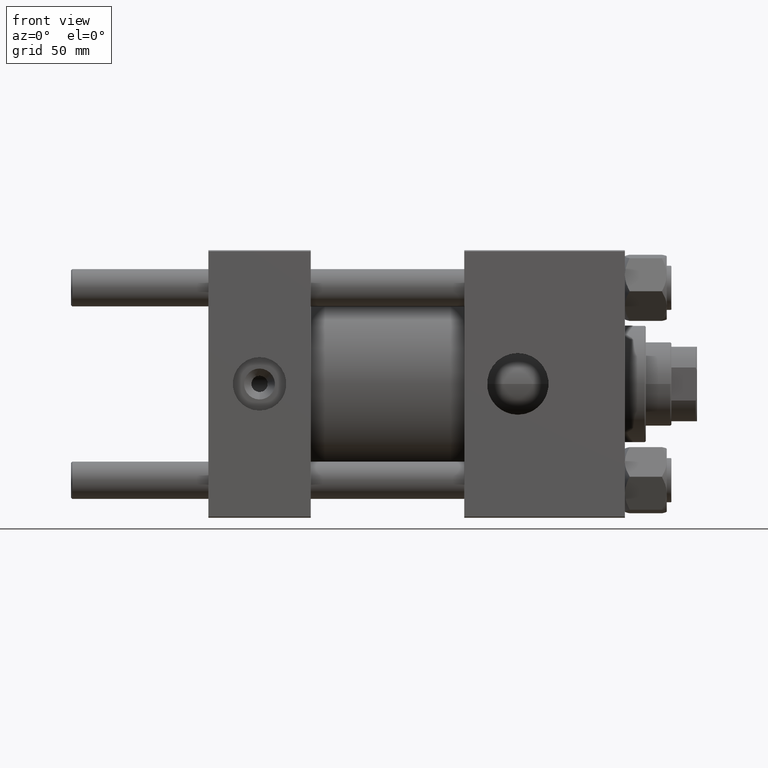
[diagram: clean part render]
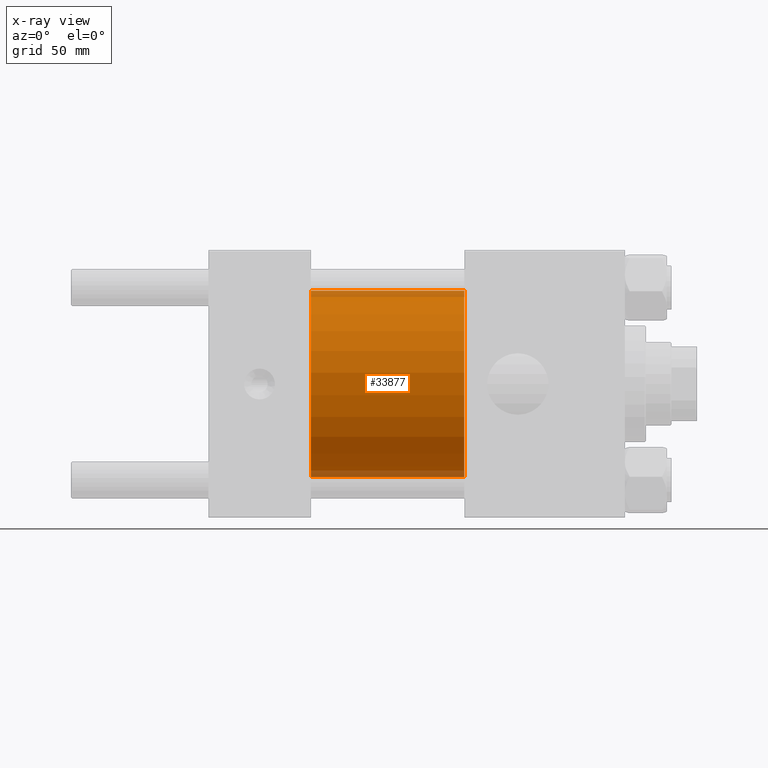
[diagram: x-ray — body ghosted, one internal face saturated and labeled with its STEP entity id]
A machine part, front view, then the same camera in x-ray: the body is ghosted and one INTERNAL B-rep face — a face not visible from any outside direction — is saturated and labeled: STEP entity #33877.
In plain terms, the highlighted cylindrical surface (partial cylindrical patch) has radius 40 mm, axis along (-1, -0, -0).
Its self-contained STEP definition (entity closure, byte-faithful):
#151 = EDGE_CURVE ( 'NONE', #24277, #37306, #9765, .T. ) ;
#523 = VECTOR ( 'NONE', #3619, 1000.000000000000000 ) ;
#1109 = CARTESIAN_POINT ( 'NONE',  ( 110.0000000000000000, 0.000000000000000000, 40.00000000000000000 ) ) ;
#1362 = EDGE_LOOP ( 'NONE', ( #48384, #41979, #39137, #29539 ) ) ;
#3096 = EDGE_CURVE ( 'NONE', #49353, #46547, #7409, .T. ) ;
#3619 = DIRECTION ( 'NONE',  ( -1.000000000000000000, -0.000000000000000000, -0.000000000000000000 ) ) ;
#5773 = AXIS2_PLACEMENT_3D ( 'NONE', #19842, #27699, #43264 ) ;
#6338 = CARTESIAN_POINT ( 'NONE',  ( 44.00000000000000000, 4.898587196589413026E-15, -40.00000000000000000 ) ) ;
#7409 = CIRCLE ( 'NONE', #5773, 40.00000000000000000 ) ;
#9367 = AXIS2_PLACEMENT_3D ( 'NONE', #37206, #18108, #14783 ) ;
#9765 = CIRCLE ( 'NONE', #30918, 40.00000000000000000 ) ;
#10613 = CARTESIAN_POINT ( 'NONE',  ( 110.0000000000000000, 0.000000000000000000, 40.00000000000000000 ) ) ;
#12913 = CARTESIAN_POINT ( 'NONE',  ( 110.0000000000000000, 4.898587196589413026E-15, -40.00000000000000000 ) ) ;
#13438 = CARTESIAN_POINT ( 'NONE',  ( 110.0000000000000000, 4.898587196589413026E-15, -40.00000000000000000 ) ) ;
#14783 = DIRECTION ( 'NONE',  ( 0.000000000000000000, 0.000000000000000000, 1.000000000000000000 ) ) ;
#18040 = EDGE_CURVE ( 'NONE', #46547, #37306, #35108, .T. ) ;
#18108 = DIRECTION ( 'NONE',  ( -1.000000000000000000, -0.000000000000000000, -0.000000000000000000 ) ) ;
#18794 = VECTOR ( 'NONE', #27464, 1000.000000000000000 ) ;
#19842 = CARTESIAN_POINT ( 'NONE',  ( 110.0000000000000000, 0.000000000000000000, 0.000000000000000000 ) ) ;
#22345 = LINE ( 'NONE', #10613, #523 ) ;
#24277 = VERTEX_POINT ( 'NONE', #36373 ) ;
#25990 = FACE_OUTER_BOUND ( 'NONE', #1362, .T. ) ;
#27464 = DIRECTION ( 'NONE',  ( -1.000000000000000000, -0.000000000000000000, -0.000000000000000000 ) ) ;
#27699 = DIRECTION ( 'NONE',  ( 1.000000000000000000, 0.000000000000000000, 0.000000000000000000 ) ) ;
#28594 = DIRECTION ( 'NONE',  ( 0.000000000000000000, 0.000000000000000000, -1.000000000000000000 ) ) ;
#28857 = CARTESIAN_POINT ( 'NONE',  ( 44.00000000000000000, 0.000000000000000000, 0.000000000000000000 ) ) ;
#29539 = ORIENTED_EDGE ( 'NONE', *, *, #40869, .F. ) ;
#30918 = AXIS2_PLACEMENT_3D ( 'NONE', #28857, #40337, #28594 ) ;
#33877 = ADVANCED_FACE ( 'NONE', ( #25990 ), #41806, .F. ) ;
#35108 = LINE ( 'NONE', #12913, #18794 ) ;
#36373 = CARTESIAN_POINT ( 'NONE',  ( 44.00000000000000000, 0.000000000000000000, 40.00000000000000000 ) ) ;
#37206 = CARTESIAN_POINT ( 'NONE',  ( 110.0000000000000000, 0.000000000000000000, 0.000000000000000000 ) ) ;
#37306 = VERTEX_POINT ( 'NONE', #6338 ) ;
#39137 = ORIENTED_EDGE ( 'NONE', *, *, #151, .F. ) ;
#40337 = DIRECTION ( 'NONE',  ( 1.000000000000000000, 0.000000000000000000, 0.000000000000000000 ) ) ;
#40869 = EDGE_CURVE ( 'NONE', #49353, #24277, #22345, .T. ) ;
#41806 = CYLINDRICAL_SURFACE ( 'NONE', #9367, 40.00000000000000000 ) ;
#41979 = ORIENTED_EDGE ( 'NONE', *, *, #18040, .T. ) ;
#43264 = DIRECTION ( 'NONE',  ( 0.000000000000000000, 0.000000000000000000, -1.000000000000000000 ) ) ;
#46547 = VERTEX_POINT ( 'NONE', #13438 ) ;
#48384 = ORIENTED_EDGE ( 'NONE', *, *, #3096, .T. ) ;
#49353 = VERTEX_POINT ( 'NONE', #1109 ) ;